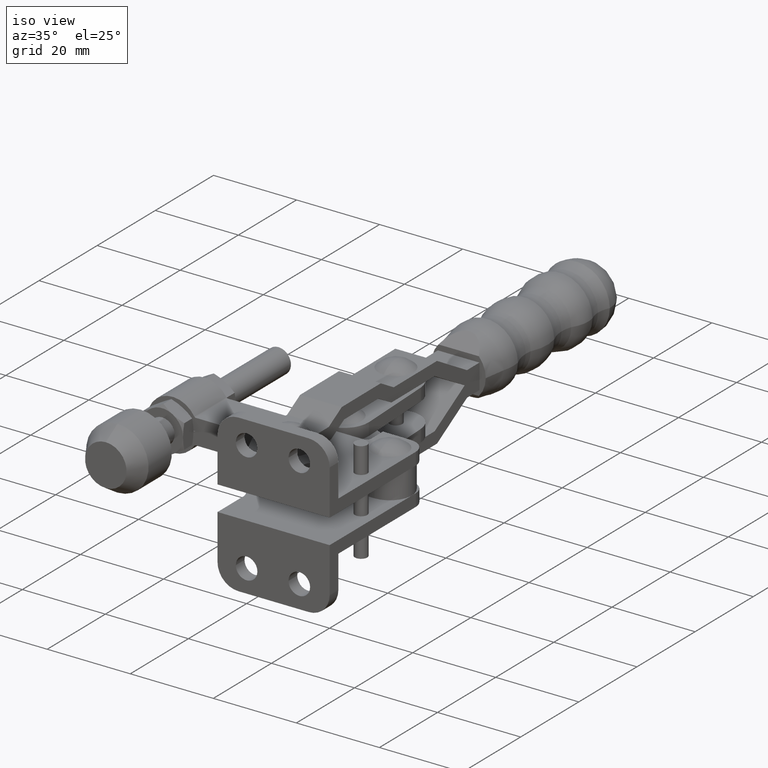
[diagram: clean part render]
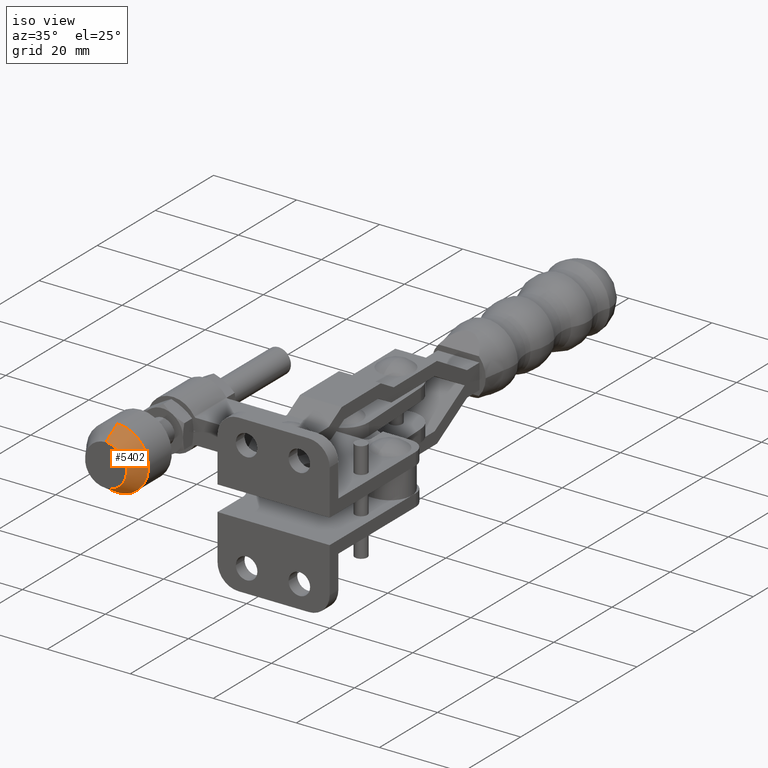
[diagram: same view with one face highlighted and labeled with its STEP entity id]
A machine part, iso view. The second image highlights one B-rep face of the part: STEP entity #5402.
In plain terms, the highlighted conical surface has half-angle 32.005 deg.
Its self-contained STEP definition (entity closure, byte-faithful):
#1121 = CONICAL_SURFACE ( 'NONE', #2995, 4.999999999999893400, 0.5585993153435400100 ) ;
#1871 = FACE_OUTER_BOUND ( 'NONE', #3830, .T. ) ;
#2189 = CARTESIAN_POINT ( 'NONE',  ( -53.88955070568556500, 1.040834085586084300E-014, -3.000000000000151000 ) ) ;
#2349 = AXIS2_PLACEMENT_3D ( 'NONE', #3626, #9250, #4406 ) ;
#2814 = CARTESIAN_POINT ( 'NONE',  ( -53.88955070568556500, 1.040834085586084300E-014, -8.000000000000044400 ) ) ;
#2815 = VERTEX_POINT ( 'NONE', #8103 ) ;
#2833 = EDGE_CURVE ( 'NONE', #3997, #5569, #8601, .T. ) ;
#2938 = CARTESIAN_POINT ( 'NONE',  ( -53.88955070568556500, 1.040834085586084300E-014, 1.999999999999742400 ) ) ;
#2992 = DIRECTION ( 'NONE',  ( 0.0000000000000000000, 0.0000000000000000000, 1.000000000000000000 ) ) ;
#2995 = AXIS2_PLACEMENT_3D ( 'NONE', #9885, #5854, #4235 ) ;
#3099 = LINE ( 'NONE', #5039, #8643 ) ;
#3626 = CARTESIAN_POINT ( 'NONE',  ( -53.88955070568556500, 4.000000000000125200, -3.000000000000151000 ) ) ;
#3830 = EDGE_LOOP ( 'NONE', ( #7304, #9183, #3979, #4841 ) ) ;
#3979 = ORIENTED_EDGE ( 'NONE', *, *, #6266, .F. ) ;
#3997 = VERTEX_POINT ( 'NONE', #2938 ) ;
#4235 = DIRECTION ( 'NONE',  ( 0.0000000000000000000, 0.0000000000000000000, 1.000000000000000000 ) ) ;
#4406 = DIRECTION ( 'NONE',  ( 0.0000000000000000000, 0.0000000000000000000, 1.000000000000000000 ) ) ;
#4550 = AXIS2_PLACEMENT_3D ( 'NONE', #2189, #7787, #2992 ) ;
#4841 = ORIENTED_EDGE ( 'NONE', *, *, #2833, .F. ) ;
#5039 = CARTESIAN_POINT ( 'NONE',  ( -53.88955070568556500, 1.040834085586084300E-014, -8.000000000000044400 ) ) ;
#5402 = ADVANCED_FACE ( 'NONE', ( #1871 ), #1121, .T. ) ;
#5569 = VERTEX_POINT ( 'NONE', #6085 ) ;
#5841 = DIRECTION ( 'NONE',  ( 6.490615054263609900E-017, 0.8479983040050999000, -0.5299989400031608300 ) ) ;
#5854 = DIRECTION ( 'NONE',  ( -0.0000000000000000000, 1.000000000000000000, -0.0000000000000000000 ) ) ;
#5872 = EDGE_CURVE ( 'NONE', #3997, #6267, #5995, .T. ) ;
#5995 = CIRCLE ( 'NONE', #4550, 4.999999999999893400 ) ;
#6085 = CARTESIAN_POINT ( 'NONE',  ( -53.88955070568556500, 4.000000000000125200, 4.499999999999689100 ) ) ;
#6266 = EDGE_CURVE ( 'NONE', #5569, #2815, #8261, .T. ) ;
#6267 = VERTEX_POINT ( 'NONE', #2814 ) ;
#7131 = EDGE_CURVE ( 'NONE', #6267, #2815, #3099, .T. ) ;
#7304 = ORIENTED_EDGE ( 'NONE', *, *, #5872, .T. ) ;
#7787 = DIRECTION ( 'NONE',  ( -0.0000000000000000000, 1.000000000000000000, -0.0000000000000000000 ) ) ;
#8103 = CARTESIAN_POINT ( 'NONE',  ( -53.88955070568556500, 4.000000000000125200, -10.49999999999999100 ) ) ;
#8261 = CIRCLE ( 'NONE', #2349, 7.499999999999840100 ) ;
#8366 = CARTESIAN_POINT ( 'NONE',  ( -53.88955070568556500, 1.040834085586084300E-014, 1.999999999999742400 ) ) ;
#8509 = DIRECTION ( 'NONE',  ( 0.0000000000000000000, 0.8479983040050999000, 0.5299989400031608300 ) ) ;
#8601 = LINE ( 'NONE', #8366, #10249 ) ;
#8643 = VECTOR ( 'NONE', #5841, 1000.000000000000100 ) ;
#9183 = ORIENTED_EDGE ( 'NONE', *, *, #7131, .T. ) ;
#9250 = DIRECTION ( 'NONE',  ( -0.0000000000000000000, 1.000000000000000000, -0.0000000000000000000 ) ) ;
#9885 = CARTESIAN_POINT ( 'NONE',  ( -53.88955070568556500, 1.040834085586084300E-014, -3.000000000000151000 ) ) ;
#10249 = VECTOR ( 'NONE', #8509, 1000.000000000000100 ) ;